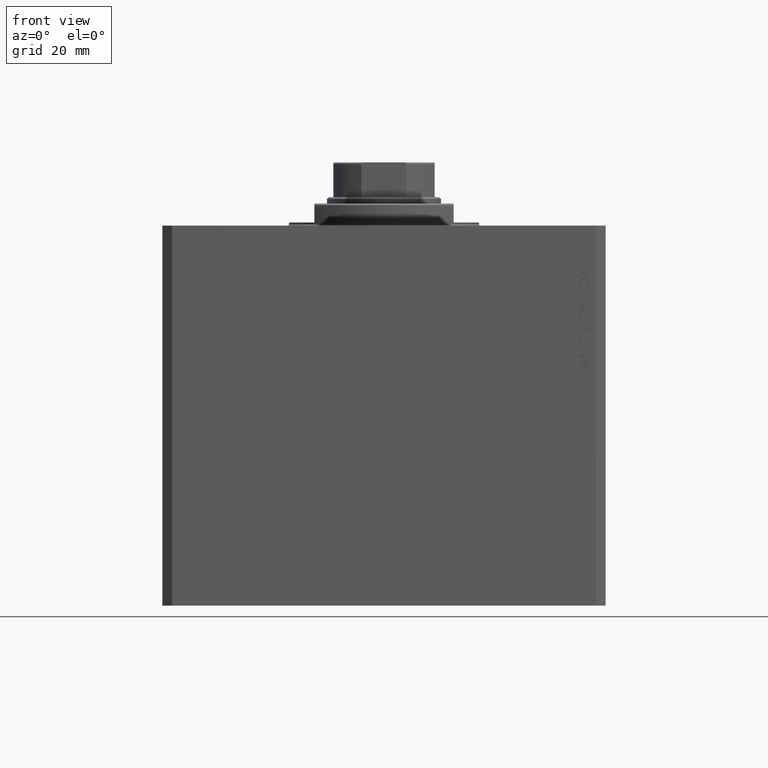
[diagram: clean part render]
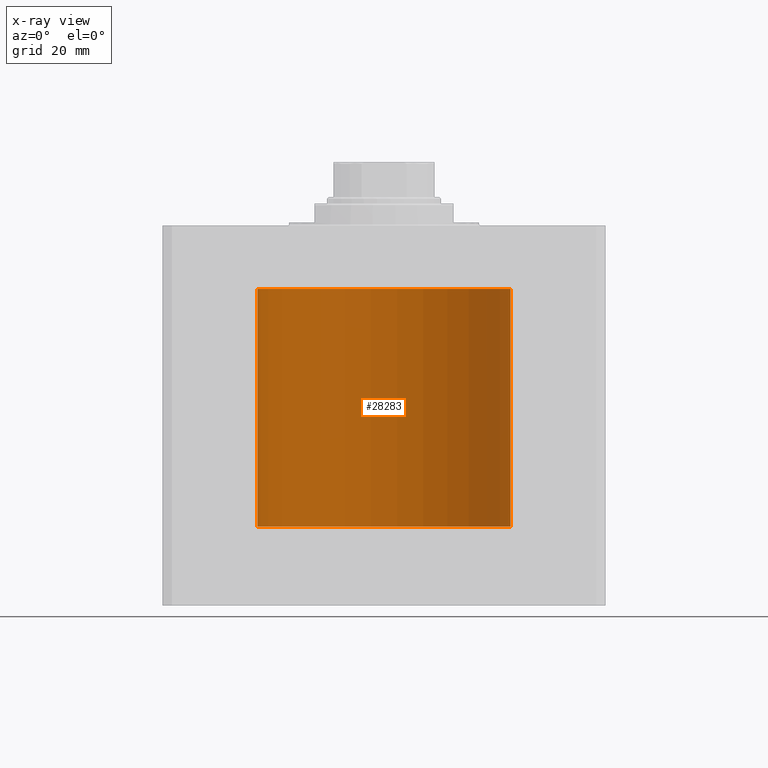
[diagram: x-ray — body ghosted, one internal face saturated and labeled with its STEP entity id]
A machine part, front view, then the same camera in x-ray: the body is ghosted and one INTERNAL B-rep face — a face not visible from any outside direction — is saturated and labeled: STEP entity #28283.
In plain terms, the highlighted cylindrical surface (partial cylindrical patch) has radius 40 mm, axis along (0, 0, 1).
Its self-contained STEP definition (entity closure, byte-faithful):
#106 = ORIENTED_EDGE ( 'NONE', *, *, #21147, .T. ) ;
#109 = ORIENTED_EDGE ( 'NONE', *, *, #21766, .F. ) ;
#116 = VECTOR ( 'NONE', #27894, 1000.000000000000000 ) ;
#665 = CARTESIAN_POINT ( 'NONE',  ( 0.000000000000000000, 0.000000000000000000, -20.00000000000000355 ) ) ;
#754 = VERTEX_POINT ( 'NONE', #10535 ) ;
#994 = CARTESIAN_POINT ( 'NONE',  ( -40.00000000000000000, 3.176717991102973922E-16, -32.99999999999999289 ) ) ;
#1014 = DIRECTION ( 'NONE',  ( 1.000000000000000000, 0.000000000000000000, 0.000000000000000000 ) ) ;
#1230 = CARTESIAN_POINT ( 'NONE',  ( -39.95269218207678819, 1.947396949689283119, -34.47509777723391977 ) ) ;
#1465 = CARTESIAN_POINT ( 'NONE',  ( -39.96191547756571794, 1.747935593588226810, -33.99372052401368194 ) ) ;
#1497 = CARTESIAN_POINT ( 'NONE',  ( 39.95497632853201964, 1.897994695932949671, -84.35596494936800127 ) ) ;
#1914 = CARTESIAN_POINT ( 'NONE',  ( -40.00000000000000000, 4.898587196589413026E-15, -20.00000000000000355 ) ) ;
#2415 = ORIENTED_EDGE ( 'NONE', *, *, #37940, .F. ) ;
#3879 = CARTESIAN_POINT ( 'NONE',  ( 39.98155206755719604, 1.219558643123237696, -86.59052494877072093 ) ) ;
#4119 = CARTESIAN_POINT ( 'NONE',  ( -39.95313149897170746, 1.935958995947111294, -35.51881372483516941 ) ) ;
#4583 = CARTESIAN_POINT ( 'NONE',  ( -39.99034680283174481, 0.8870373003876257378, -33.20268175905523123 ) ) ;
#4612 = CARTESIAN_POINT ( 'NONE',  ( 39.98756496795039794, 1.003187065221004648, -83.26489670948993194 ) ) ;
#4815 = CARTESIAN_POINT ( 'NONE',  ( -39.98759801293407179, 1.001913486779978824, -33.26412727956110871 ) ) ;
#4958 = VECTOR ( 'NONE', #10487, 1000.000000000000000 ) ;
#5049 = CARTESIAN_POINT ( 'NONE',  ( -39.98755980670525645, 1.003394358445550694, -36.73498561931656781 ) ) ;
#5067 = EDGE_CURVE ( 'NONE', #28160, #5397, #27271, .T. ) ;
#5313 = CARTESIAN_POINT ( 'NONE',  ( 39.96844091090332540, 1.590277861643260238, -83.78016690258999688 ) ) ;
#5397 = VERTEX_POINT ( 'NONE', #25778 ) ;
#5885 = CARTESIAN_POINT ( 'NONE',  ( 40.00000000000000000, 0.000000000000000000, -95.00000000000000000 ) ) ;
#6767 = AXIS2_PLACEMENT_3D ( 'NONE', #24618, #21767, #18415 ) ;
#7453 = CARTESIAN_POINT ( 'NONE',  ( 39.94996871087634105, 2.000000000000458300, -84.99999999999998579 ) ) ;
#7713 = EDGE_CURVE ( 'NONE', #42525, #28160, #28645, .T. ) ;
#8154 = CARTESIAN_POINT ( 'NONE',  ( -39.98155931191828927, 1.219319673654558844, -33.40929441127704536 ) ) ;
#8884 = CARTESIAN_POINT ( 'NONE',  ( 39.99934021390485839, 0.2630606439975807787, -83.01307548577453588 ) ) ;
#9559 = ORIENTED_EDGE ( 'NONE', *, *, #7713, .T. ) ;
#9842 = EDGE_CURVE ( 'NONE', #754, #38789, #26398, .T. ) ;
#10145 = EDGE_LOOP ( 'NONE', ( #2415, #18961, #9559, #44956, #106, #24366, #26787, #109, #37927 ) ) ;
#10487 = DIRECTION ( 'NONE',  ( -0.000000000000000000, -0.000000000000000000, 1.000000000000000000 ) ) ;
#10535 = CARTESIAN_POINT ( 'NONE',  ( 40.00000000000000000, 0.000000000000000000, -20.00000000000000355 ) ) ;
#10794 = CARTESIAN_POINT ( 'NONE',  ( 39.99934513831946958, 0.2621798624261794664, -86.98702196541452736 ) ) ;
#11266 = CARTESIAN_POINT ( 'NONE',  ( 39.96190461752344447, 1.748181485672914093, -86.00586757298763985 ) ) ;
#11296 = CARTESIAN_POINT ( 'NONE',  ( 40.00000000000000000, 3.022137594547156248E-17, -87.00000000000000000 ) ) ;
#11914 = CARTESIAN_POINT ( 'NONE',  ( 40.00000000000000000, -7.123019543693126097E-24, -82.99999999999998579 ) ) ;
#11975 = CARTESIAN_POINT ( 'NONE',  ( -39.99685289554154366, 0.5177847365437173721, -33.06379604364708769 ) ) ;
#12002 = CARTESIAN_POINT ( 'NONE',  ( 39.96241579707638181, 1.735101203729181307, -83.99680496632646509 ) ) ;
#12215 = CARTESIAN_POINT ( 'NONE',  ( -39.95496761534566588, 1.898177513206617872, -35.64350132831550155 ) ) ;
#12246 = CARTESIAN_POINT ( 'NONE',  ( 39.95062818562870888, 1.986948187989950876, -84.73706829020871112 ) ) ;
#12481 = CARTESIAN_POINT ( 'NONE',  ( 39.98154439070758315, 1.219772309801767651, -83.40967826248693484 ) ) ;
#14869 = VERTEX_POINT ( 'NONE', #33389 ) ;
#15091 = CARTESIAN_POINT ( 'NONE',  ( 39.96844549051295559, 1.599199597524137317, -86.22909439486065253 ) ) ;
#15132 = VERTEX_POINT ( 'NONE', #22831 ) ;
#15568 = CARTESIAN_POINT ( 'NONE',  ( -39.95960167186748890, 1.797984772084965543, -35.88567634638035742 ) ) ;
#16038 = CARTESIAN_POINT ( 'NONE',  ( -39.97167824115165757, 1.507866514858795748, -36.32051891686420220 ) ) ;
#16700 = VERTEX_POINT ( 'NONE', #44098 ) ;
#16915 = CARTESIAN_POINT ( 'NONE',  ( 40.00000000000000000, 0.000000000000000000, -95.00000000000000000 ) ) ;
#18415 = DIRECTION ( 'NONE',  ( 1.000000000000000000, 0.000000000000000000, 0.000000000000000000 ) ) ;
#18760 = VERTEX_POINT ( 'NONE', #11914 ) ;
#18961 = ORIENTED_EDGE ( 'NONE', *, *, #36224, .F. ) ;
#19000 = VECTOR ( 'NONE', #20250, 1000.000000000000000 ) ;
#19061 = DIRECTION ( 'NONE',  ( 1.000000000000000000, 0.000000000000000000, 0.000000000000000000 ) ) ;
#19183 = CARTESIAN_POINT ( 'NONE',  ( 39.99683397345101810, 0.5193173888100585112, -83.06418508701626990 ) ) ;
#19403 = CARTESIAN_POINT ( 'NONE',  ( 0.000000000000000000, 0.000000000000000000, -95.00000000000000000 ) ) ;
#19617 = CARTESIAN_POINT ( 'NONE',  ( -39.99035901532459292, 0.8864973422255639779, -36.79758953480038031 ) ) ;
#20119 = CARTESIAN_POINT ( 'NONE',  ( 39.99036315117484719, 0.8863074176598244591, -83.20231909422288652 ) ) ;
#20250 = DIRECTION ( 'NONE',  ( -0.000000000000000000, -0.000000000000000000, 1.000000000000000000 ) ) ;
#20594 = CARTESIAN_POINT ( 'NONE',  ( 40.00000000000000000, -7.123019543693126097E-24, -82.99999999999998579 ) ) ;
#21147 = EDGE_CURVE ( 'NONE', #5397, #18760, #23407, .T. ) ;
#21316 = CARTESIAN_POINT ( 'NONE',  ( 39.98759288254257172, 1.002119990237823499, -86.73575586470111887 ) ) ;
#21557 = CARTESIAN_POINT ( 'NONE',  ( 39.99999999999999289, 0.1321969090936832014, -87.00000000000001421 ) ) ;
#21766 = EDGE_CURVE ( 'NONE', #16700, #38789, #23832, .T. ) ;
#21767 = DIRECTION ( 'NONE',  ( 0.000000000000000000, 0.000000000000000000, 1.000000000000000000 ) ) ;
#22275 = CARTESIAN_POINT ( 'NONE',  ( -39.94996638891713303, 2.000046381102384974, -35.12975685824790872 ) ) ;
#22736 = CARTESIAN_POINT ( 'NONE',  ( -39.97824670274066960, 1.322236164346118237, -33.49377550898345390 ) ) ;
#22768 = CARTESIAN_POINT ( 'NONE',  ( 39.94996871087634105, 2.000000000000458300, -84.99999999999998579 ) ) ;
#22831 = CARTESIAN_POINT ( 'NONE',  ( -40.00000000000000000, 4.898587196589413026E-15, -95.00000000000000000 ) ) ;
#23207 = CARTESIAN_POINT ( 'NONE',  ( -39.94997337387901126, 1.999906856589179771, -34.73834748183895726 ) ) ;
#23234 = CARTESIAN_POINT ( 'NONE',  ( 39.97829218842755949, 1.320937632928927741, -83.49250256667733083 ) ) ;
#23407 = B_SPLINE_CURVE_WITH_KNOTS ( 'NONE', 3,
 ( #22768, #44960, #12246, #38265, #1497, #44719, #12002, #5313, #37323, #23234, #12481, #4612, #20119, #27041, #19183, #8884, #33740, #20594 ),
 .UNSPECIFIED., .F., .F.,
 ( 4, 2, 2, 2, 2, 2, 2, 2, 4 ),
 ( 0.003127655752042789172, 0.003518434735802910326, 0.003909213719563031479, 0.004299992703323152199, 0.004690771687083273786, 0.005081550670843395373, 0.005472329654603516093, 0.005863108638363636813, 0.006253887622123758400 ),
 .UNSPECIFIED. ) ;
#23832 = LINE ( 'NONE', #31455, #19000 ) ;
#24366 = ORIENTED_EDGE ( 'NONE', *, *, #40653, .T. ) ;
#24618 = CARTESIAN_POINT ( 'NONE',  ( 0.000000000000000000, 0.000000000000000000, -95.00000000000000000 ) ) ;
#25362 = CARTESIAN_POINT ( 'NONE',  ( 39.99685149082506541, 0.5179001791355952733, -86.93617508912632275 ) ) ;
#25601 = CARTESIAN_POINT ( 'NONE',  ( 40.00000000000000000, 3.022137594547156248E-17, -87.00000000000000000 ) ) ;
#25778 = CARTESIAN_POINT ( 'NONE',  ( 39.94996871087634105, 2.000000000000458300, -84.99999999999998579 ) ) ;
#26067 = CARTESIAN_POINT ( 'NONE',  ( 39.97823849595685175, 1.322484529437312650, -86.50600888624524032 ) ) ;
#26398 = CIRCLE ( 'NONE', #40888, 40.00000000000000000 ) ;
#26538 = CARTESIAN_POINT ( 'NONE',  ( -39.97828381824886890, 1.321191049141055895, -36.50727762807592569 ) ) ;
#26787 = ORIENTED_EDGE ( 'NONE', *, *, #9842, .T. ) ;
#27041 = CARTESIAN_POINT ( 'NONE',  ( 39.99499935316635657, 0.6439817867486670178, -83.10197867874718725 ) ) ;
#27271 = B_SPLINE_CURVE_WITH_KNOTS ( 'NONE', 3,
 ( #25601, #21557, #10794, #25362, #43518, #40168, #21316, #3879, #26067, #15091, #11266, #28702, #36109, #7453 ),
 .UNSPECIFIED., .F., .F.,
 ( 4, 2, 2, 2, 2, 2, 4 ),
 ( 2.936885669105128817E-20, 0.0003909569690053489718, 0.0007819139380106978352, 0.001172870907016046373, 0.001563827876021395020, 0.002345741814032091879, 0.003127655752042789172 ),
 .UNSPECIFIED. ) ;
#27894 = DIRECTION ( 'NONE',  ( -0.000000000000000000, -0.000000000000000000, 1.000000000000000000 ) ) ;
#27949 = CARTESIAN_POINT ( 'NONE',  ( -39.99999999999999289, 0.1305408908116475475, -36.99999999999998579 ) ) ;
#28160 = VERTEX_POINT ( 'NONE', #11296 ) ;
#28283 = ADVANCED_FACE ( 'NONE', ( #44948 ), #41365, .F. ) ;
#28645 = LINE ( 'NONE', #43212, #4958 ) ;
#28702 = CARTESIAN_POINT ( 'NONE',  ( 39.95268414756683484, 1.947559645210714674, -85.52432767386868306 ) ) ;
#30124 = CARTESIAN_POINT ( 'NONE',  ( -39.96240535388719906, 1.735341415802265086, -36.00278343108410439 ) ) ;
#30593 = CARTESIAN_POINT ( 'NONE',  ( -39.99499715356421348, 0.6441229686298113322, -36.89797557273014661 ) ) ;
#30980 = CARTESIAN_POINT ( 'NONE',  ( -40.00000000000000000, 4.898587196589413026E-15, -95.00000000000000000 ) ) ;
#31213 = LINE ( 'NONE', #30980, #38110 ) ;
#31455 = CARTESIAN_POINT ( 'NONE',  ( -40.00000000000000000, 4.898587196589413026E-15, -95.00000000000000000 ) ) ;
#31763 = CARTESIAN_POINT ( 'NONE',  ( -40.00000000000000000, 4.898587189460959019E-15, -37.00000000000000000 ) ) ;
#31824 = B_SPLINE_CURVE_WITH_KNOTS ( 'NONE', 3,
 ( #994, #37524, #40875, #11975, #34173, #4583, #4815, #8154, #22736, #33711, #1465, #1230, #23207, #22275, #44924, #4119, #12215, #15568, #30124, #44692, #16038, #26538, #37763, #5049, #19617, #30593, #41816, #41585, #27949, #31763 ),
 .UNSPECIFIED., .F., .F.,
 ( 4, 2, 2, 2, 2, 2, 2, 2, 2, 2, 2, 2, 2, 2, 4 ),
 ( 3.087105484439743043E-19, 0.0003908679763826832377, 0.0007817359527653661502, 0.001172603929148049009, 0.001563471905530731867, 0.002345207858296083706, 0.003126943811061435544, 0.003517811787444111681, 0.003908679763826786516, 0.004299547740209463086, 0.004690415716592138788, 0.005081283692974815358, 0.005472151669357490193, 0.005863019645740165896, 0.006253887622122840731 ),
 .UNSPECIFIED. ) ;
#33389 = CARTESIAN_POINT ( 'NONE',  ( -40.00000000000000000, 4.898587189460959019E-15, -37.00000000000000000 ) ) ;
#33711 = CARTESIAN_POINT ( 'NONE',  ( -39.96845582698919941, 1.598940400393649819, -33.77058047739597413 ) ) ;
#33740 = CARTESIAN_POINT ( 'NONE',  ( 40.00000000000000000, 0.1305111693278485918, -82.99999999999994316 ) ) ;
#33771 = AXIS2_PLACEMENT_3D ( 'NONE', #19403, #41605, #1014 ) ;
#34173 = CARTESIAN_POINT ( 'NONE',  ( -39.99498566902682484, 0.6448208412979499204, -33.10226605812628264 ) ) ;
#35252 = EDGE_CURVE ( 'NONE', #16700, #14869, #31824, .T. ) ;
#35754 = CIRCLE ( 'NONE', #6767, 40.00000000000000000 ) ;
#36109 = CARTESIAN_POINT ( 'NONE',  ( 39.94996871087634105, 2.000000000000458300, -85.26100396064657616 ) ) ;
#36224 = EDGE_CURVE ( 'NONE', #42525, #15132, #35754, .T. ) ;
#37323 = CARTESIAN_POINT ( 'NONE',  ( 39.97168791869498250, 1.507609851330703465, -83.67919067321091120 ) ) ;
#37524 = CARTESIAN_POINT ( 'NONE',  ( -40.00000000000000000, 0.1321668174197086765, -32.99999999999998579 ) ) ;
#37763 = CARTESIAN_POINT ( 'NONE',  ( -39.98153721162278629, 1.220008905300839608, -36.59014263787319976 ) ) ;
#37927 = ORIENTED_EDGE ( 'NONE', *, *, #35252, .T. ) ;
#37940 = EDGE_CURVE ( 'NONE', #15132, #14869, #31213, .T. ) ;
#38110 = VECTOR ( 'NONE', #38385, 1000.000000000000000 ) ;
#38265 = CARTESIAN_POINT ( 'NONE',  ( 39.95313906850238794, 1.935803218567043738, -84.48061374223441078 ) ) ;
#38385 = DIRECTION ( 'NONE',  ( -0.000000000000000000, -0.000000000000000000, 1.000000000000000000 ) ) ;
#38789 = VERTEX_POINT ( 'NONE', #1914 ) ;
#40168 = CARTESIAN_POINT ( 'NONE',  ( 39.99034271445660949, 0.8872245818428182718, -86.79722787929314620 ) ) ;
#40653 = EDGE_CURVE ( 'NONE', #18760, #754, #45340, .T. ) ;
#40781 = DIRECTION ( 'NONE',  ( 0.000000000000000000, 0.000000000000000000, 1.000000000000000000 ) ) ;
#40875 = CARTESIAN_POINT ( 'NONE',  ( -39.99934543628835826, 0.2621206772944133512, -33.01297218325230887 ) ) ;
#40888 = AXIS2_PLACEMENT_3D ( 'NONE', #665, #40781, #19061 ) ;
#41365 = CYLINDRICAL_SURFACE ( 'NONE', #33771, 40.00000000000000000 ) ;
#41585 = CARTESIAN_POINT ( 'NONE',  ( -39.99933990797904926, 0.2631205944229108584, -36.98691850247509905 ) ) ;
#41605 = DIRECTION ( 'NONE',  ( -0.000000000000000000, -0.000000000000000000, 1.000000000000000000 ) ) ;
#41816 = CARTESIAN_POINT ( 'NONE',  ( -39.99683256694736144, 0.5194325103739407812, -36.93578600311449378 ) ) ;
#42525 = VERTEX_POINT ( 'NONE', #5885 ) ;
#43212 = CARTESIAN_POINT ( 'NONE',  ( 40.00000000000000000, 0.000000000000000000, -95.00000000000000000 ) ) ;
#43518 = CARTESIAN_POINT ( 'NONE',  ( 39.99498341981901461, 0.6449644383382160395, -86.89768711383446487 ) ) ;
#44098 = CARTESIAN_POINT ( 'NONE',  ( -40.00000000000000000, 3.176717991102973922E-16, -32.99999999999999289 ) ) ;
#44692 = CARTESIAN_POINT ( 'NONE',  ( -39.96843077430287394, 1.590532281203076215, -36.21950461315501002 ) ) ;
#44719 = CARTESIAN_POINT ( 'NONE',  ( 39.95961195549606515, 1.797756837149760978, -84.11386492750068555 ) ) ;
#44924 = CARTESIAN_POINT ( 'NONE',  ( -39.95062375609131777, 1.987036815800614642, -35.26227773012374911 ) ) ;
#44948 = FACE_OUTER_BOUND ( 'NONE', #10145, .T. ) ;
#44956 = ORIENTED_EDGE ( 'NONE', *, *, #5067, .T. ) ;
#44960 = CARTESIAN_POINT ( 'NONE',  ( 39.94996871087634815, 2.000000000000458300, -84.86955743139924380 ) ) ;
#45340 = LINE ( 'NONE', #16915, #116 ) ;